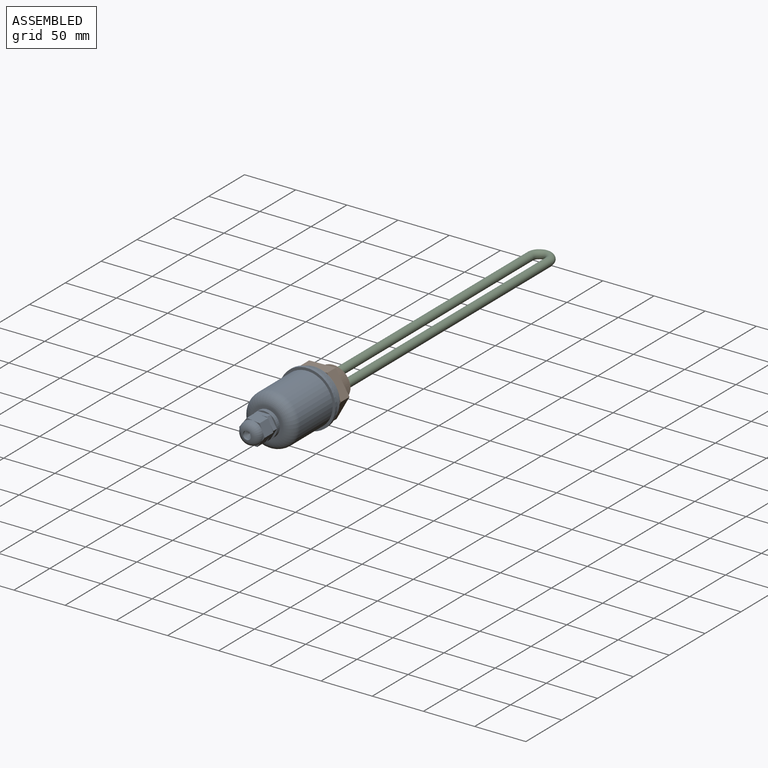
[diagram: assembled view]
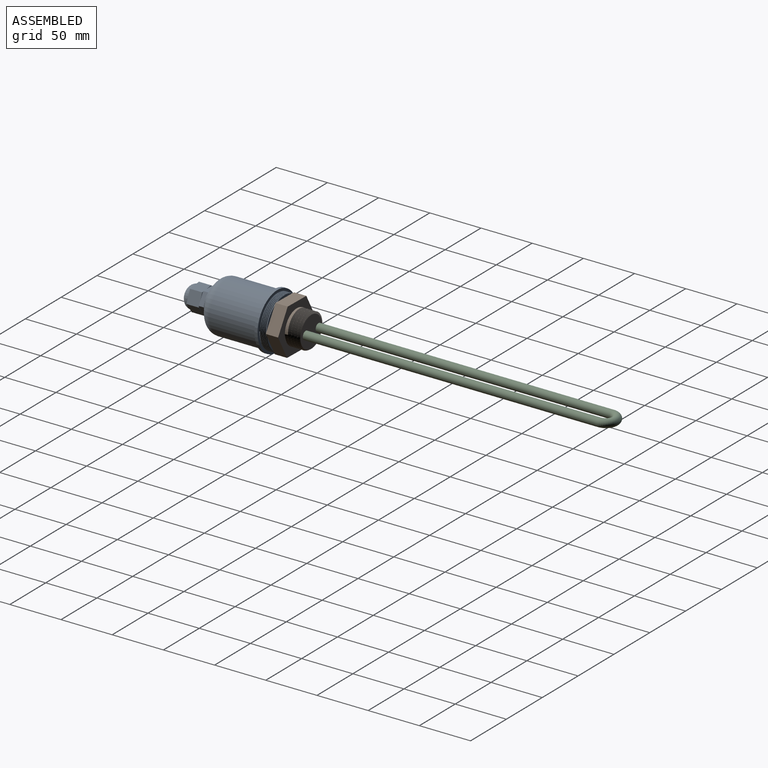
[diagram: assembled view, second angle]
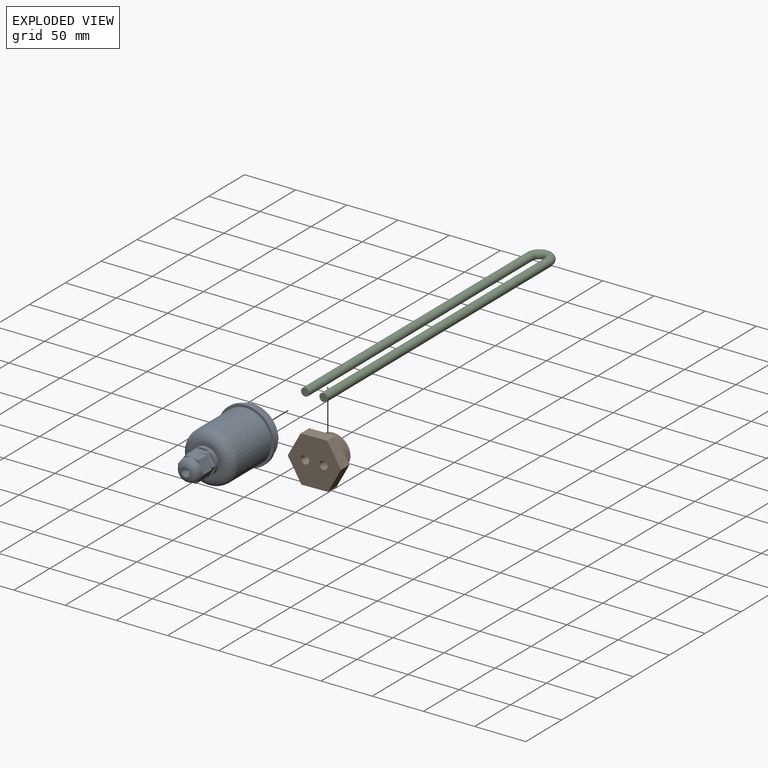
[diagram: exploded view]
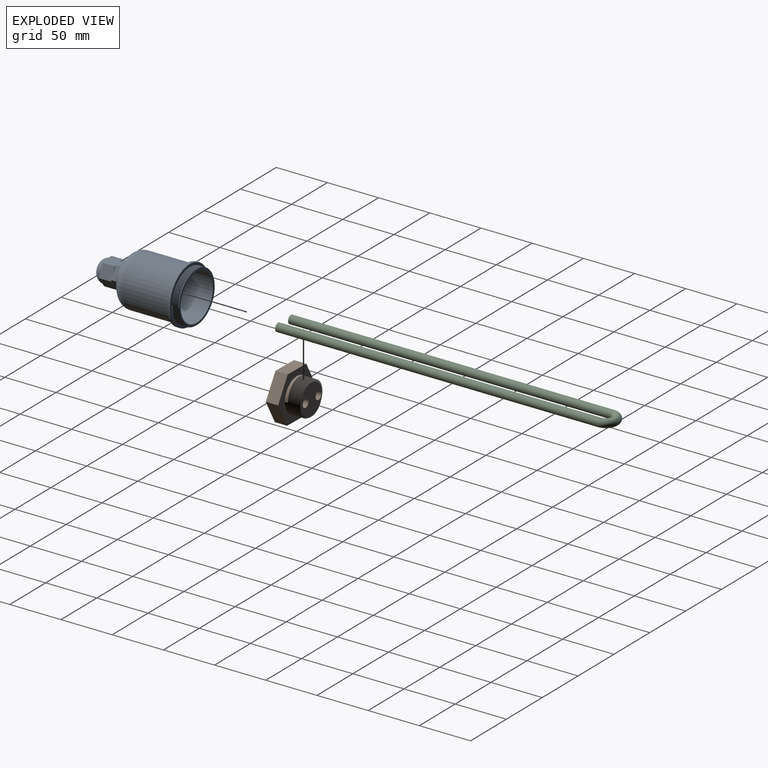
[diagram: exploded view, second angle]
ASSEMBLY  parts=3 mates=2
PART A: 55 faces, bbox 55.8x58.6x95.5 mm
  f0: cylinder r=25mm len=50mm, axis (0,0,1), area 341.8mm2, adj f1,f47,f51,f52,f53,f54
  f1: plane 50.84x50.33mm, normal (0,0,-1), area 336.9mm2, adj f0,f49,f51,f53,f54
  f2: cylinder r=25mm len=50mm, axis (0,0,-1), area 7225.7mm2, adj f20,f46
  f3: torus R=3.9mm, axis (0,0,1), area 574.8mm2, adj f4,f5,f6,f7,f8,f42,f44
  f4: plane 8.74x6.51mm, normal (0,0,1), area 6.4mm2, adj f3,f36,f37
  f5: plane 10.01x5.05mm, normal (0,0,1), area 6.4mm2, adj f3,f37,f38
  f6: plane 10.83x3.76mm, normal (0,0,1), area 6.4mm2, adj f3,f38,f39
  f7: plane 8.74x6.51mm, normal (0,0,1), area 6.4mm2, adj f3,f39,f40
  f8: plane 10.01x5.05mm, normal (0,0,1), area 6.4mm2, adj f3,f40,f41
  f9: plane 4.94x2.49mm, normal (0,0,1), area 1.6mm2, adj f23,f28,f36
  f10: plane 4.31x3.21mm, normal (0,0,1), area 1.6mm2, adj f27,f28,f41
  f11: plane 5.34x0.63mm, normal (0,0,1), area 1.6mm2, adj f26,f27,f40
  f12: plane 4.94x2.49mm, normal (0,0,1), area 1.6mm2, adj f25,f26,f39
  f13: plane 4.31x3.21mm, normal (0,0,1), area 1.6mm2, adj f24,f25,f38
  f14: plane 10.83x6.25mm, normal (0,0,1), area 14.2mm2, adj f21,f23
  f15: plane 10.83x6.25mm, normal (0,0,1), area 14.2mm2, adj f21,f28
  f16: plane 12.5x1.67mm, normal (0,0,1), area 14.2mm2, adj f21,f27
  f17: plane 10.83x6.25mm, normal (0,0,1), area 14.2mm2, adj f21,f26
  f18: plane 10.83x6.25mm, normal (0,0,1), area 14.2mm2, adj f21,f25
  f19: plane 30x30mm, normal (0,0,1), area 216mm2, adj f20,f21
  f20: torus R=15mm, axis (0,0,1), area 2108.8mm2, adj f2,f19
  f21: cylinder r=12.5mm len=25mm, axis (0,0,-1), area 314.2mm2, adj f14,f15,f16,f17,f18,f19,f22
  f22: plane 12.5x1.67mm, normal (0,0,1), area 14.2mm2, adj f21,f24
  f23: plane 10.83x6.25mm, normal (0.87,0.5,0), area 62.5mm2, adj f9,f14,f24,f28,f29,f30
  f24: plane 12.5x5mm, normal (0,1,0), area 62.5mm2, adj f13,f22,f23,f25,f29,f31
  f25: plane 10.83x6.25mm, normal (-0.87,0.5,0), area 62.5mm2, adj f12,f13,f18,f24,f26,f32
  f26: plane 10.83x6.25mm, normal (-0.87,-0.5,0), area 62.5mm2, adj f11,f12,f17,f25,f27,f33
  f27: plane 12.5x5mm, normal (0,-1,0), area 62.5mm2, adj f10,f11,f16,f26,f28,f34
  f28: plane 10.83x6.25mm, normal (0.87,-0.5,0), area 62.5mm2, adj f9,f10,f15,f23,f27,f35
  f29: plane 5.34x0.63mm, normal (0,0,1), area 1.6mm2, adj f23,f24,f37
  f30: plane 5.89x3.4mm, normal (0,0,-1), area 2.5mm2, adj f23,f36,f37
  f31: plane 6.8x0.73mm, normal (0,0,-1), area 2.5mm2, adj f24,f37,f38
  f32: plane 5.89x3.76mm, normal (0,0,-1), area 2.5mm2, adj f25,f38,f39
  f33: plane 5.89x3.4mm, normal (0,0,-1), area 2.5mm2, adj f26,f39,f40
  f34: plane 6.8x0.73mm, normal (0,0,-1), area 2.5mm2, adj f27,f40,f41
  f35: plane 5.89x3.76mm, normal (0,0,-1), area 2.5mm2, adj f28,f36,f41
  f36: plane 12x11.56mm, normal (0.92,0.4,0), area 151mm2, adj f4,f9,f30,f35,f37,f41,f42
  f37: plane 12.5x12mm, normal (0.12,0.99,0), area 151mm2, adj f4,f5,f29,f30,f31,f36,f38
  f38: plane 12x10.09mm, normal (-0.8,0.6,0), area 151mm2, adj f5,f6,f13,f31,f32,f37,f39
  f39: plane 12x11.56mm, normal (-0.92,-0.4,0), area 151mm2, adj f6,f7,f12,f32,f33,f38,f40
  f40: plane 12.5x12mm, normal (-0.12,-0.99,0), area 151mm2, adj f7,f8,f11,f33,f34,f39,f41
  f41: plane 12x10.09mm, normal (0.8,-0.6,0), area 151mm2, adj f8,f10,f34,f35,f36,f40,f42
  f42: plane 10.83x3.76mm, normal (0,0,1), area 6.4mm2, adj f3,f36,f41
  f43: cone r=0mm half-angle=59deg, axis (0,0,1), area 58.6mm2, adj f44
  f44: cylinder r=4mm len=8mm, axis (0,0,1), area 50.2mm2, adj f3,f43
  f45: cylinder r=27.5mm len=55mm, axis (0,0,-1), area 518.4mm2, adj f46,f47
  f46: plane 55x55mm, normal (0,0,1), area 412.3mm2, adj f2,f45
  f47: plane 55x55mm, normal (0,0,-1), area 412.3mm2, adj f0,f45,f50
  f48: plane 45x45mm, normal (0,0,-1), area 1590.4mm2, adj f49
  f49: cylinder r=22.5mm len=57mm, axis (0,0,-1), area 8058.2mm2, adj f1,f48
  f50: cylinder r=25mm len=25mm, axis (0,0,1), area 6.9mm2, adj f47,f52,f53
  f51: plane 0.61x0.35mm, normal (0,-1,0), area 0.1mm2, adj f0,f1,f53
  f52: plane 1x0.87mm, normal (0,1,0), area 0.4mm2, adj f0,f50,f53,f54
  f53: bspline ~57.74x50mm, area 769.8mm2, adj f0,f1,f50,f51,f52,f54
  f54: bspline ~57.74x50mm, area 727.4mm2, adj f0,f1,f52,f53
PART B: 19 faces, bbox 54.7x31.3x48.2 mm
  f0: plane 25.98x12mm, normal (-0.02,0,1), area 311.8mm2, adj f1,f5,f6,f7
  f1: plane 22.74x12.57mm, normal (-0.88,0,0.48), area 311.8mm2, adj f0,f2,f6,f7
  f2: plane 22.26x13.4mm, normal (-0.86,0,-0.52), area 311.8mm2, adj f1,f3,f6,f7
  f3: plane 25.98x12mm, normal (0.02,0,-1), area 311.8mm2, adj f2,f4,f6,f7
  f4: plane 22.74x12.57mm, normal (0.88,0,-0.48), area 311.8mm2, adj f3,f5,f6,f7
  f5: plane 22.26x13.4mm, normal (0.86,0,0.52), area 311.8mm2, adj f0,f4,f6,f7
  f6: plane 51.95x45.47mm, normal (0,-1,0), area 1653.2mm2, adj f0,f1,f2,f3,f4,f5,f17,f18
  f7: plane 51.95x45.47mm, normal (0,1,0), area 898.4mm2, adj f0,f1,f2,f3,f4,f5,f8
  f8: cylinder r=16.5mm len=33mm, axis (0,-1,0), area 157.4mm2, adj f7,f9,f14,f15,f16
  f9: cylinder r=16.5mm len=33mm, axis (0,-1,0), area 3.8mm2, adj f8,f10,f14,f15
  f10: cylinder r=16.5mm len=33mm, axis (0,-1,0), area 3.8mm2, adj f9,f11,f14,f15
  f11: cylinder r=16.5mm len=33mm, axis (0,-1,0), area 3.8mm2, adj f10,f12,f14,f15
  f12: cylinder r=16.5mm len=33mm, axis (0,-1,0), area 2.9mm2, adj f11,f13,f14,f15
  f13: plane 32.91x32.81mm, normal (0,1,0), area 609.2mm2, adj f12,f14,f15,f17,f18
  f14: bspline ~38.11x33mm, area 1525.9mm2, adj f8,f9,f10,f11,f12,f13,f15,f16
  f15: bspline ~38.11x33mm, area 1327.6mm2, adj f8,f9,f10,f11,f12,f13,f14,f16
  f16: plane 3.03x2.96mm, normal (0,0,-1), area 4.5mm2, adj f8,f14,f15
  f17: cylinder r=4mm len=27mm, axis (0,1,0), area 678.6mm2, adj f6,f13
  f18: cylinder r=4mm len=27mm, axis (0,1,0), area 678.6mm2, adj f6,f13
PART C: 5 faces, bbox 328.1x8x28.1 mm
  f0: plane 8x8mm, normal (-1,0,0), area 50.3mm2, adj f4
  f1: plane 8x8mm, normal (-1,0,0), area 50.3mm2, adj f2
  f2: cylinder r=4mm len=314mm, axis (-1,0,0), area 7891.7mm2, adj f1,f3
  f3: torus R=9mm, axis (0,-1,0), area 710.6mm2, adj f2,f4
  f4: cylinder r=4mm len=314mm, axis (1,0,0), area 7891.7mm2, adj f0,f3
PLACE A rot(axis=(1,0,0),90deg) t=(-5.64,-72.78,-72.34)mm
PLACE B t=(-5.64,-53.78,-72.34)mm
PLACE C rot(axis=(0.58,0.58,0.58),120deg) t=(-0.64,-65.78,-68.34)mm
MATE fastened C.f2 <-> B.f17  axis (0,-1,0) through (-14.64,-65.78,-72.34)mm
MATE fastened A.f49 <-> B.f8  axis (0,1,0) through (-5.64,-65.78,-72.34)mm
